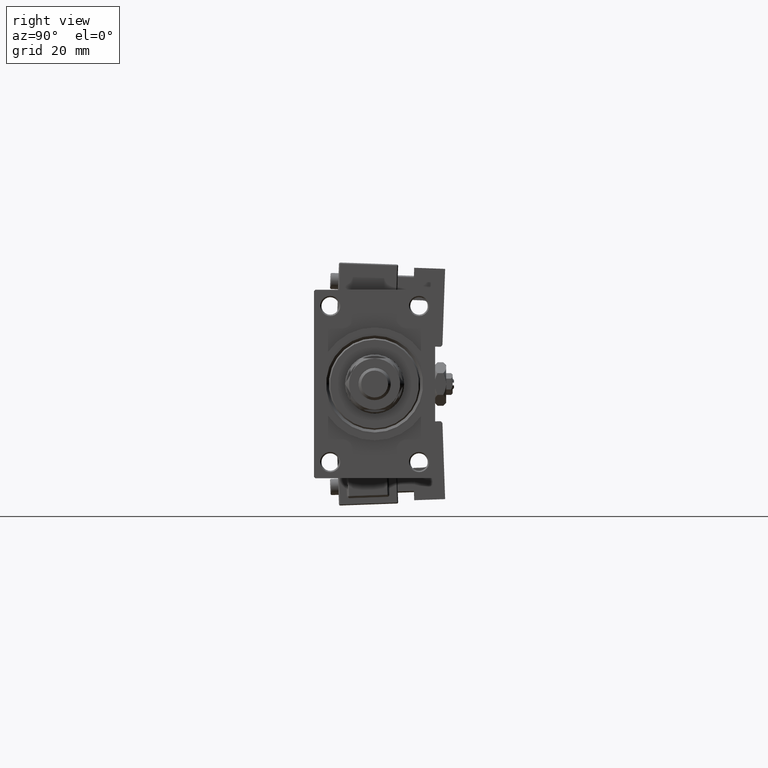
[diagram: clean part render]
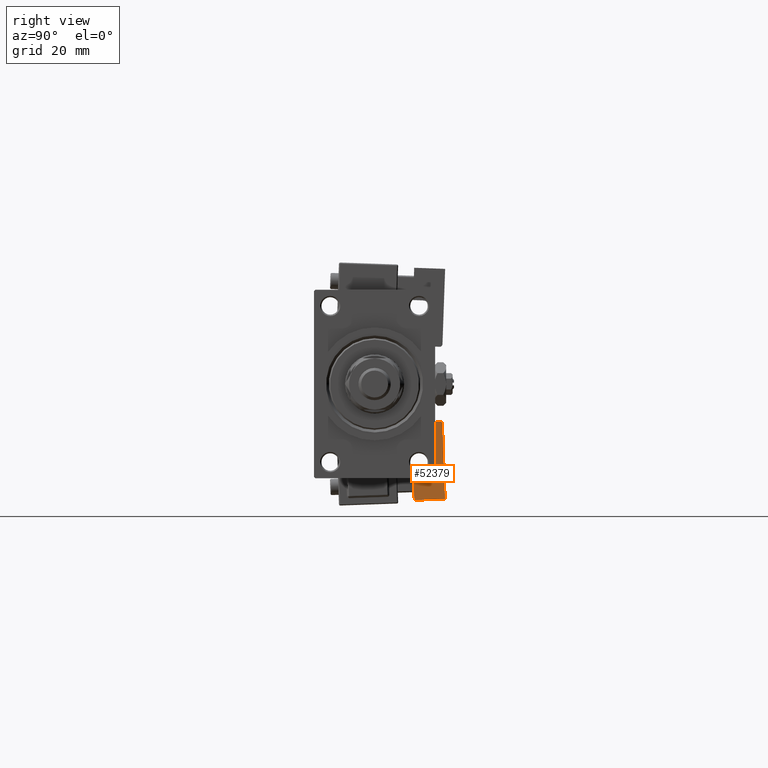
[diagram: same view with one face highlighted and labeled with its STEP entity id]
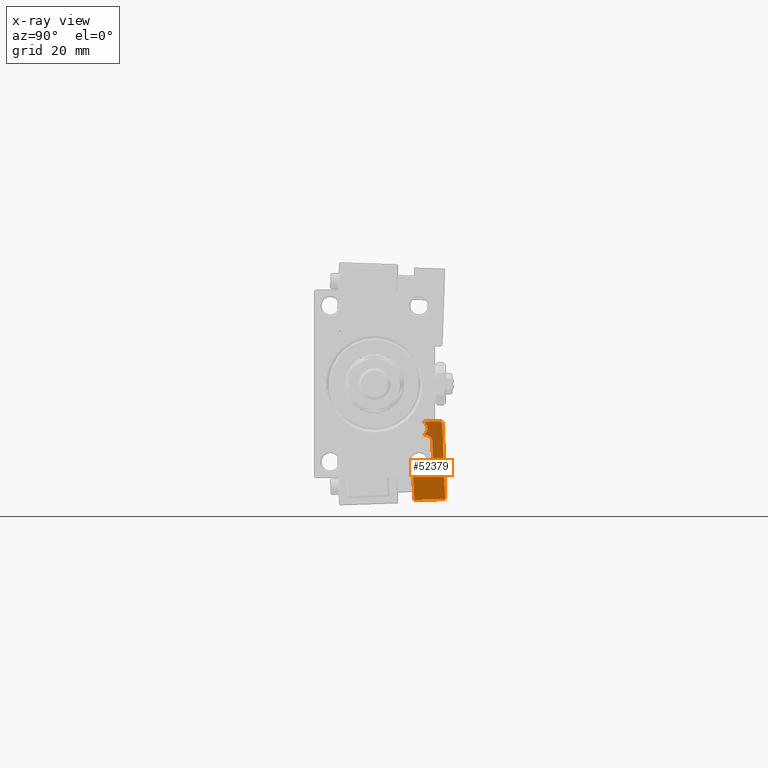
[diagram: x-ray of the same camera — body ghosted, the highlighted face saturated]
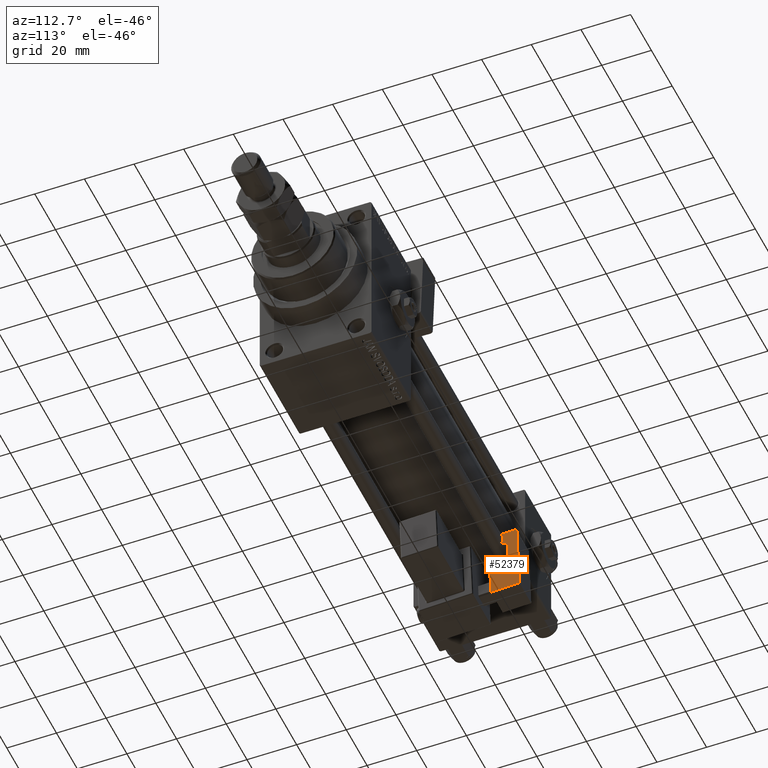
[diagram: same view with one face highlighted and labeled with its STEP entity id]
A machine part, right view. The second image highlights one B-rep face of the part: STEP entity #52379.
The next image is the same camera in x-ray: the body ghosted, the highlighted face saturated — about 27% of this face is hidden behind the body in this view.
A second angle (auxiliary view) of the same face is appended — the face is thin or edge-on in the first view.
In plain terms, the highlighted planar face has unit normal (-1, 0, 0).
Its self-contained STEP definition (entity closure, byte-faithful):
#919 = CARTESIAN_POINT ( 'NONE',  ( 5.750000000000000000, 5.750000000000001776, 12.00000000000000000 ) ) ;
#1286 = PLANE ( 'NONE',  #51217 ) ;
#1767 = LINE ( 'NONE', #45698, #48405 ) ;
#1813 = LINE ( 'NONE', #18137, #50294 ) ;
#2008 = CARTESIAN_POINT ( 'NONE',  ( 5.750000000000000000, 1.749999999999999112, 21.50000000000000000 ) ) ;
#2146 = LINE ( 'NONE', #18472, #20479 ) ;
#2599 = ORIENTED_EDGE ( 'NONE', *, *, #49072, .T. ) ;
#3079 = VERTEX_POINT ( 'NONE', #2008 ) ;
#3251 = DIRECTION ( 'NONE',  ( -1.000000000000000000, 0.000000000000000000, 0.000000000000000000 ) ) ;
#3954 = CIRCLE ( 'NONE', #24474, 2.999999999999999112 ) ;
#4364 = DIRECTION ( 'NONE',  ( -0.000000000000000000, 1.000000000000000000, -0.000000000000000000 ) ) ;
#4533 = FACE_OUTER_BOUND ( 'NONE', #5246, .T. ) ;
#4798 = ORIENTED_EDGE ( 'NONE', *, *, #30917, .T. ) ;
#5203 = ORIENTED_EDGE ( 'NONE', *, *, #28298, .T. ) ;
#5246 = EDGE_LOOP ( 'NONE', ( #43440, #4798, #20876, #52203, #23825, #5203, #16895, #2599, #45215, #28484, #44203, #30288, #39955 ) ) ;
#7422 = EDGE_CURVE ( 'NONE', #13068, #51955, #2146, .T. ) ;
#8290 = DIRECTION ( 'NONE',  ( -0.000000000000000000, -0.000000000000000000, -1.000000000000000000 ) ) ;
#8989 = EDGE_CURVE ( 'NONE', #51955, #9003, #3954, .T. ) ;
#9003 = VERTEX_POINT ( 'NONE', #15293 ) ;
#9026 = DIRECTION ( 'NONE',  ( 0.000000000000000000, -3.071906155375595568E-16, -1.000000000000000000 ) ) ;
#10598 = CARTESIAN_POINT ( 'NONE',  ( 5.750000000000000000, -2.250000000000002665, 16.00000000000000000 ) ) ;
#10950 = VECTOR ( 'NONE', #4364, 1000.000000000000000 ) ;
#11284 = CARTESIAN_POINT ( 'NONE',  ( 5.750000000000000000, -2.936149805543990521, 26.50000000000000000 ) ) ;
#11614 = CARTESIAN_POINT ( 'NONE',  ( 5.750000000000000000, -1.249999999999999334, 24.00000000000000000 ) ) ;
#13068 = VERTEX_POINT ( 'NONE', #52478 ) ;
#13239 = VERTEX_POINT ( 'NONE', #14398 ) ;
#13428 = CARTESIAN_POINT ( 'NONE',  ( 5.750000000000000000, 5.750000000000000000, 29.00000000000000000 ) ) ;
#13994 = VECTOR ( 'NONE', #8290, 1000.000000000000000 ) ;
#14139 = DIRECTION ( 'NONE',  ( 0.000000000000000000, -0.7682212795973755171, -0.6401843996644802637 ) ) ;
#14398 = CARTESIAN_POINT ( 'NONE',  ( 5.750000000000000000, 1.749999999999997558, 16.00000000000000000 ) ) ;
#15293 = CARTESIAN_POINT ( 'NONE',  ( 5.750000000000000000, -1.015596606550550396, 24.19533616120787300 ) ) ;
#15798 = LINE ( 'NONE', #50237, #13994 ) ;
#16148 = LINE ( 'NONE', #40253, #10950 ) ;
#16367 = EDGE_CURVE ( 'NONE', #29083, #13068, #50095, .T. ) ;
#16461 = CARTESIAN_POINT ( 'NONE',  ( 5.750000000000000000, 4.750000000000001776, 28.00000000000000000 ) ) ;
#16530 = EDGE_CURVE ( 'NONE', #16997, #33855, #15798, .T. ) ;
#16568 = CARTESIAN_POINT ( 'NONE',  ( 5.750000000000000000, 5.750000000000001776, 12.00000000000000000 ) ) ;
#16895 = ORIENTED_EDGE ( 'NONE', *, *, #41170, .T. ) ;
#16997 = VERTEX_POINT ( 'NONE', #21200 ) ;
#18137 = CARTESIAN_POINT ( 'NONE',  ( 5.750000000000000000, 1.749999999999999778, 26.50000000000000355 ) ) ;
#18472 = CARTESIAN_POINT ( 'NONE',  ( 5.750000000000000000, -1.249999999999999334, 29.00000000000000000 ) ) ;
#19056 = VERTEX_POINT ( 'NONE', #45225 ) ;
#20105 = VECTOR ( 'NONE', #44254, 1000.000000000000000 ) ;
#20329 = CIRCLE ( 'NONE', #39147, 2.499999999999998668 ) ;
#20358 = EDGE_CURVE ( 'NONE', #13239, #28807, #44116, .T. ) ;
#20479 = VECTOR ( 'NONE', #35335, 1000.000000000000114 ) ;
#20732 = DIRECTION ( 'NONE',  ( 0.000000000000000000, -2.602085213965208275E-15, 1.000000000000000000 ) ) ;
#20876 = ORIENTED_EDGE ( 'NONE', *, *, #16367, .T. ) ;
#20995 = EDGE_CURVE ( 'NONE', #3079, #13239, #1767, .T. ) ;
#21200 = CARTESIAN_POINT ( 'NONE',  ( 5.750000000000000000, -5.750000000000000000, 12.00000000000000000 ) ) ;
#23187 = DIRECTION ( 'NONE',  ( -1.000000000000000000, 0.000000000000000000, 0.000000000000000000 ) ) ;
#23599 = CARTESIAN_POINT ( 'NONE',  ( 5.750000000000000000, 5.750000000000001776, 28.00000000000000000 ) ) ;
#23644 = LINE ( 'NONE', #39974, #20105 ) ;
#23750 = VECTOR ( 'NONE', #25032, 1000.000000000000000 ) ;
#23825 = ORIENTED_EDGE ( 'NONE', *, *, #8989, .T. ) ;
#24474 = AXIS2_PLACEMENT_3D ( 'NONE', #11284, #3251, #39131 ) ;
#24598 = EDGE_CURVE ( 'NONE', #26236, #19056, #41617, .T. ) ;
#25032 = DIRECTION ( 'NONE',  ( -0.000000000000000000, -0.000000000000000000, -1.000000000000000000 ) ) ;
#26236 = VERTEX_POINT ( 'NONE', #23599 ) ;
#26270 = LINE ( 'NONE', #26545, #47593 ) ;
#26545 = CARTESIAN_POINT ( 'NONE',  ( 5.750000000000000000, 5.750000000000001776, 0.000000000000000000 ) ) ;
#27059 = DIRECTION ( 'NONE',  ( -0.000000000000000000, 1.000000000000000000, -0.000000000000000000 ) ) ;
#27117 = CARTESIAN_POINT ( 'NONE',  ( 5.750000000000000000, -1.015596606550550618, 28.80466383879212700 ) ) ;
#28298 = EDGE_CURVE ( 'NONE', #9003, #49294, #1813, .T. ) ;
#28484 = ORIENTED_EDGE ( 'NONE', *, *, #20358, .T. ) ;
#28807 = VERTEX_POINT ( 'NONE', #46402 ) ;
#29083 = VERTEX_POINT ( 'NONE', #49057 ) ;
#30288 = ORIENTED_EDGE ( 'NONE', *, *, #16530, .T. ) ;
#30917 = EDGE_CURVE ( 'NONE', #26236, #29083, #31609, .T. ) ;
#31609 = CIRCLE ( 'NONE', #37559, 1.000000000000000888 ) ;
#33498 = CARTESIAN_POINT ( 'NONE',  ( 5.750000000000000000, -5.750000000000000000, 0.000000000000000000 ) ) ;
#33855 = VERTEX_POINT ( 'NONE', #33498 ) ;
#35213 = CARTESIAN_POINT ( 'NONE',  ( 5.750000000000000000, -0.7500000000000007772, 21.50000000000000000 ) ) ;
#35335 = DIRECTION ( 'NONE',  ( 0.000000000000000000, 0.7682212795973759611, -0.6401843996644797086 ) ) ;
#36825 = DIRECTION ( 'NONE',  ( 1.000000000000000000, -0.000000000000000000, -0.000000000000000000 ) ) ;
#37263 = AXIS2_PLACEMENT_3D ( 'NONE', #10598, #42984, #51818 ) ;
#37559 = AXIS2_PLACEMENT_3D ( 'NONE', #16461, #36825, #20732 ) ;
#38308 = CARTESIAN_POINT ( 'NONE',  ( 5.750000000000000000, -0.7500000000000007772, 24.00000000000000000 ) ) ;
#39131 = DIRECTION ( 'NONE',  ( 0.000000000000000000, 0.000000000000000000, 1.000000000000000000 ) ) ;
#39147 = AXIS2_PLACEMENT_3D ( 'NONE', #35213, #23187, #47545 ) ;
#39655 = VECTOR ( 'NONE', #46096, 1000.000000000000000 ) ;
#39955 = ORIENTED_EDGE ( 'NONE', *, *, #44066, .T. ) ;
#39974 = CARTESIAN_POINT ( 'NONE',  ( 5.750000000000000000, -1.249999999999999334, 24.00000000000000000 ) ) ;
#40253 = CARTESIAN_POINT ( 'NONE',  ( 5.750000000000000000, 5.750000000000001776, 12.00000000000000000 ) ) ;
#41170 = EDGE_CURVE ( 'NONE', #49294, #50473, #23644, .T. ) ;
#41617 = LINE ( 'NONE', #919, #23750 ) ;
#42984 = DIRECTION ( 'NONE',  ( -1.000000000000000000, 0.000000000000000000, 0.000000000000000000 ) ) ;
#43440 = ORIENTED_EDGE ( 'NONE', *, *, #24598, .F. ) ;
#44066 = EDGE_CURVE ( 'NONE', #33855, #19056, #26270, .T. ) ;
#44116 = CIRCLE ( 'NONE', #37263, 4.000000000000000000 ) ;
#44203 = ORIENTED_EDGE ( 'NONE', *, *, #49403, .F. ) ;
#44254 = DIRECTION ( 'NONE',  ( 0.000000000000000000, 1.000000000000000000, 0.000000000000000000 ) ) ;
#45215 = ORIENTED_EDGE ( 'NONE', *, *, #20995, .T. ) ;
#45225 = CARTESIAN_POINT ( 'NONE',  ( 5.750000000000000000, 5.750000000000001776, 0.000000000000000000 ) ) ;
#45236 = DIRECTION ( 'NONE',  ( -1.000000000000000000, 0.000000000000000000, 0.000000000000000000 ) ) ;
#45698 = CARTESIAN_POINT ( 'NONE',  ( 5.750000000000000000, 1.750000000000000000, 24.00000000000000000 ) ) ;
#46096 = DIRECTION ( 'NONE',  ( 0.000000000000000000, -1.000000000000000000, 0.000000000000000000 ) ) ;
#46281 = DIRECTION ( 'NONE',  ( 0.000000000000000000, 0.000000000000000000, 1.000000000000000000 ) ) ;
#46402 = CARTESIAN_POINT ( 'NONE',  ( 5.750000000000000000, -2.250000000000001776, 12.00000000000000000 ) ) ;
#47545 = DIRECTION ( 'NONE',  ( 0.000000000000000000, 0.000000000000000000, 1.000000000000000000 ) ) ;
#47593 = VECTOR ( 'NONE', #27059, 1000.000000000000000 ) ;
#48405 = VECTOR ( 'NONE', #9026, 1000.000000000000000 ) ;
#49057 = CARTESIAN_POINT ( 'NONE',  ( 5.750000000000000000, 4.750000000000002665, 29.00000000000000000 ) ) ;
#49072 = EDGE_CURVE ( 'NONE', #50473, #3079, #20329, .T. ) ;
#49294 = VERTEX_POINT ( 'NONE', #11614 ) ;
#49403 = EDGE_CURVE ( 'NONE', #16997, #28807, #16148, .T. ) ;
#50095 = LINE ( 'NONE', #13428, #39655 ) ;
#50237 = CARTESIAN_POINT ( 'NONE',  ( 5.750000000000000000, -5.750000000000000000, 12.00000000000000000 ) ) ;
#50294 = VECTOR ( 'NONE', #14139, 1000.000000000000114 ) ;
#50473 = VERTEX_POINT ( 'NONE', #38308 ) ;
#51217 = AXIS2_PLACEMENT_3D ( 'NONE', #16568, #45236, #46281 ) ;
#51818 = DIRECTION ( 'NONE',  ( 0.000000000000000000, 0.000000000000000000, 1.000000000000000000 ) ) ;
#51955 = VERTEX_POINT ( 'NONE', #27117 ) ;
#52203 = ORIENTED_EDGE ( 'NONE', *, *, #7422, .T. ) ;
#52379 = ADVANCED_FACE ( 'NONE', ( #4533 ), #1286, .F. ) ;
#52478 = CARTESIAN_POINT ( 'NONE',  ( 5.750000000000000000, -1.249999999999999334, 29.00000000000000000 ) ) ;